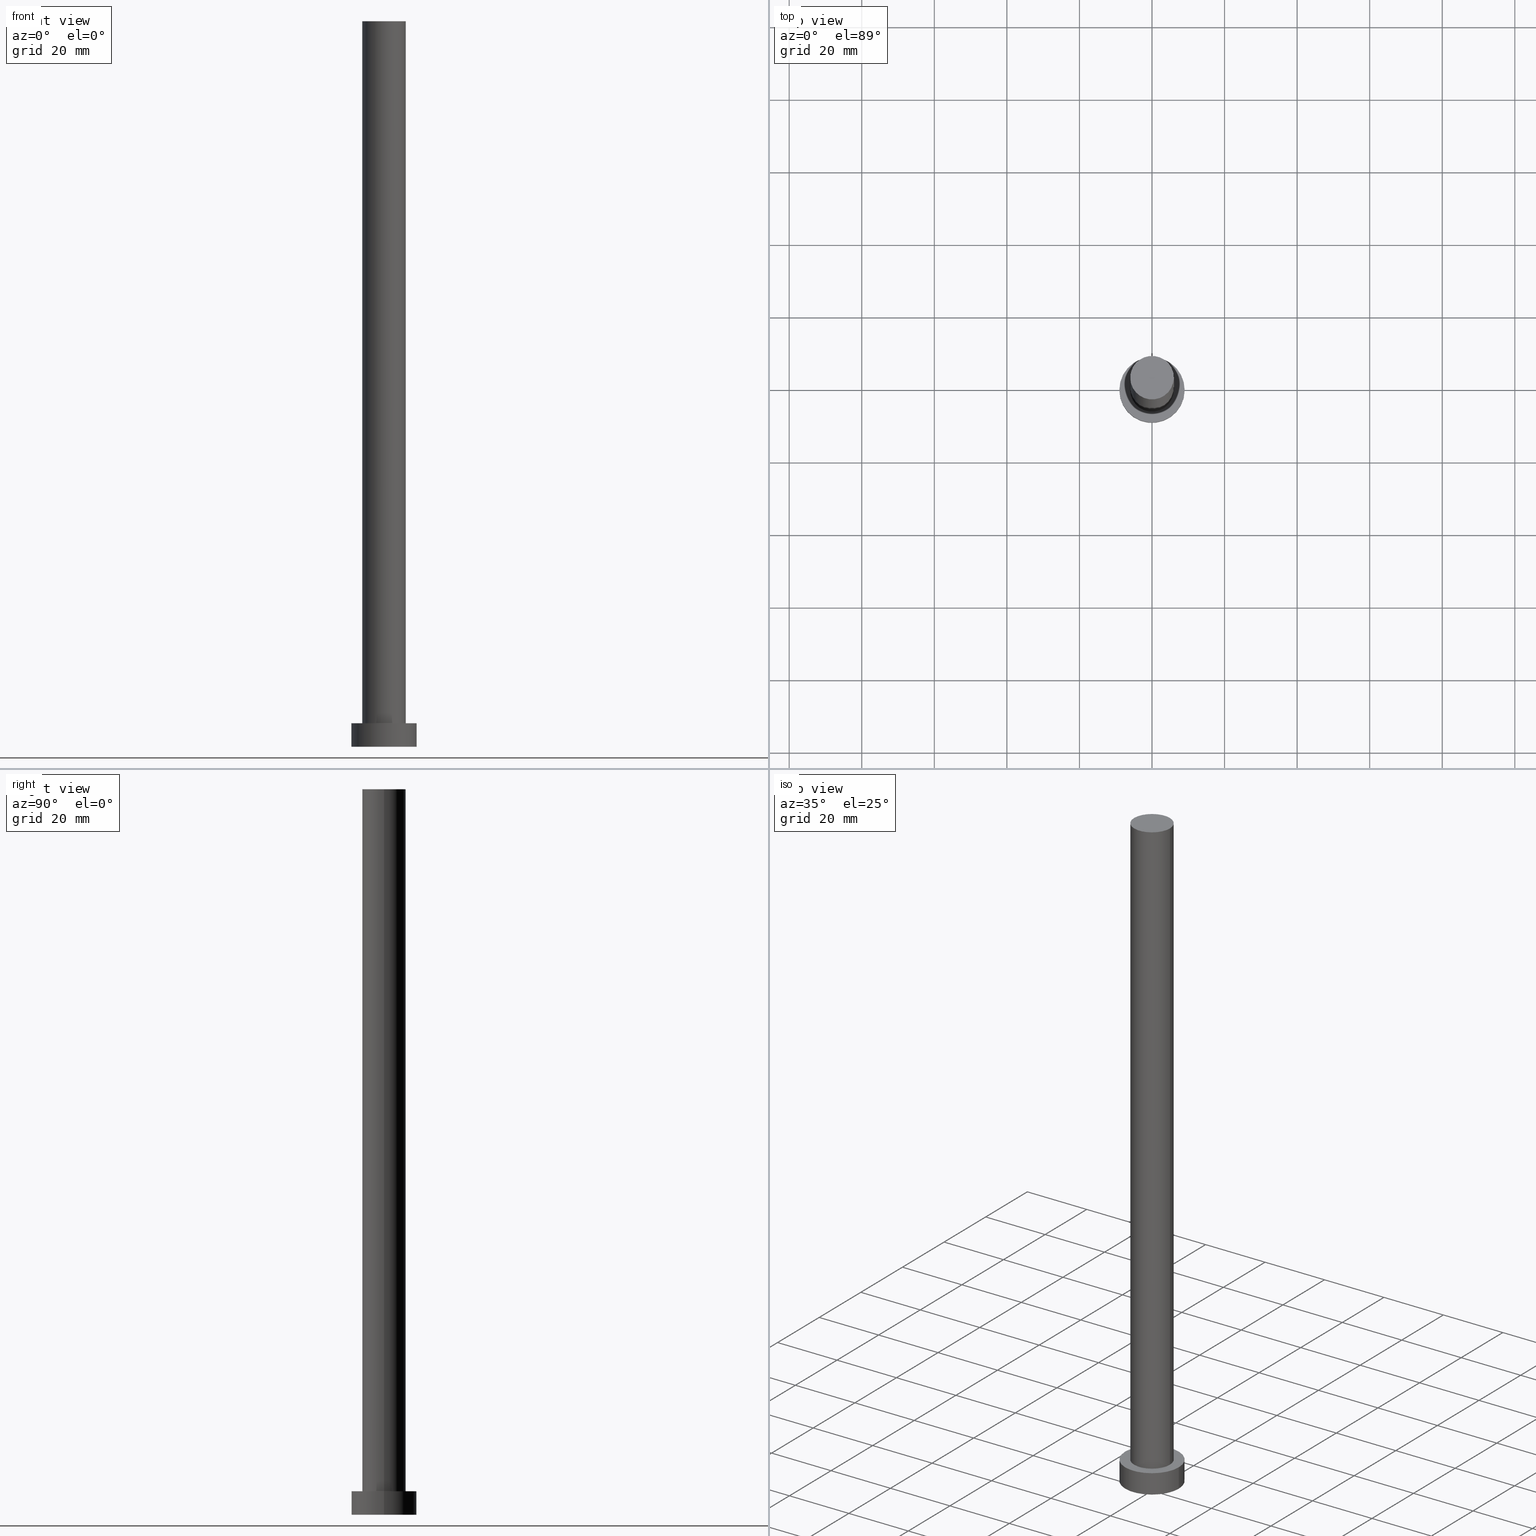
[diagram: canonical four-view strip — front | top / right | iso, engineering-drawing reading convention]
A machine part, canonical four-view strip (front | top / right | iso — engineering-drawing reading convention). The complete STEP part file that produces these views, byte-faithful:
ISO-10303-21;
HEADER;
FILE_DESCRIPTION (( 'STEP AP203' ),
    '1' );
FILE_NAME ('0cd7.STEP',
    '2023-02-13T11:32:17',
    ( '' ),
    ( '' ),
    'SwSTEP 2.0',
    'SolidWorks 2019',
    '' );
FILE_SCHEMA (( 'CONFIG_CONTROL_DESIGN' ));
ENDSEC;

DATA;
#1 = VERTEX_POINT ( 'NONE', #23 ) ;
#2 = LOCAL_TIME ( 12, 32, 17.00000000000000000, #66 ) ;
#3 = ORIENTED_EDGE ( 'NONE', *, *, #157, .F. ) ;
#4 = DIRECTION ( 'NONE',  ( 0.000000000000000000, 0.000000000000000000, 1.000000000000000000 ) ) ;
#5 = ORIENTED_EDGE ( 'NONE', *, *, #247, .F. ) ;
#6 = LOCAL_TIME ( 12, 32, 17.00000000000000000, #102 ) ;
#7 = FACE_OUTER_BOUND ( 'NONE', #186, .T. ) ;
#8 = AXIS2_PLACEMENT_3D ( 'NONE', #98, #82, #218 ) ;
#9 = ADVANCED_FACE ( 'NONE', ( #178 ), #48, .F. ) ;
#10 = UNCERTAINTY_MEASURE_WITH_UNIT (LENGTH_MEASURE( 1.000000000000000082E-05 ), #52, 'distance_accuracy_value', 'NONE');
#11 = CARTESIAN_POINT ( 'NONE',  ( 0.000000000000000000, 0.000000000000000000, 6.500000000000000000 ) ) ;
#12 = CARTESIAN_POINT ( 'NONE',  ( -9.000000000000000000, 0.000000000000000000, 6.500000000000000000 ) ) ;
#13 = PERSON_AND_ORGANIZATION_ROLE ( 'creator' ) ;
#14 = DIRECTION ( 'NONE',  ( 0.000000000000000000, 0.000000000000000000, 1.000000000000000000 ) ) ;
#15 = PERSON_AND_ORGANIZATION_ROLE ( 'creator' ) ;
#16 = VERTEX_POINT ( 'NONE', #97 ) ;
#17 = DIRECTION ( 'NONE',  ( 0.000000000000000000, 0.000000000000000000, 1.000000000000000000 ) ) ;
#18 = APPROVAL_DATE_TIME ( #205, #86 ) ;
#19 = ORIENTED_EDGE ( 'NONE', *, *, #47, .T. ) ;
#20 = DIRECTION ( 'NONE',  ( 0.000000000000000000, 0.000000000000000000, 1.000000000000000000 ) ) ;
#21 = VERTEX_POINT ( 'NONE', #130 ) ;
#22 = VERTEX_POINT ( 'NONE', #101 ) ;
#23 = CARTESIAN_POINT ( 'NONE',  ( -9.000000000000000000, 0.000000000000000000, 6.500000000000000000 ) ) ;
#24 = APPROVAL_PERSON_ORGANIZATION ( #44, #86, #228 ) ;
#25 = DIRECTION ( 'NONE',  ( -1.000000000000000000, 0.000000000000000000, 0.000000000000000000 ) ) ;
#26 = CARTESIAN_POINT ( 'NONE',  ( -6.000000000000000888, 0.000000000000000000, 200.0000000000000000 ) ) ;
#27 = CC_DESIGN_PERSON_AND_ORGANIZATION_ASSIGNMENT ( #99, #13, ( #229 ) ) ;
#28 = DIRECTION ( 'NONE',  ( 1.000000000000000000, 0.000000000000000000, 0.000000000000000000 ) ) ;
#29 = EDGE_LOOP ( 'NONE', ( #165, #103, #105, #124 ) ) ;
#30 = CIRCLE ( 'NONE', #8, 6.000000000000000888 ) ;
#31 = DIRECTION ( 'NONE',  ( -1.000000000000000000, 0.000000000000000000, 0.000000000000000000 ) ) ;
#32 = CARTESIAN_POINT ( 'NONE',  ( 0.000000000000000000, 0.000000000000000000, 0.000000000000000000 ) ) ;
#33 = CARTESIAN_POINT ( 'NONE',  ( 0.000000000000000000, 0.000000000000000000, 0.000000000000000000 ) ) ;
#34 = FACE_OUTER_BOUND ( 'NONE', #199, .T. ) ;
#35 = CIRCLE ( 'NONE', #175, 9.000000000000000000 ) ;
#36 = DATE_TIME_ROLE ( 'creation_date' ) ;
#37 = COORDINATED_UNIVERSAL_TIME_OFFSET ( 1, 0, .AHEAD. ) ;
#38 = DATE_AND_TIME ( #219, #173 ) ;
#39 = ORIENTED_EDGE ( 'NONE', *, *, #112, .F. ) ;
#40 = SECURITY_CLASSIFICATION ( '', '', #197 ) ;
#41 = DIRECTION ( 'NONE',  ( 0.000000000000000000, 0.000000000000000000, 1.000000000000000000 ) ) ;
#42 = EDGE_LOOP ( 'NONE', ( #206, #227, #50, #240 ) ) ;
#43 = CC_DESIGN_DATE_AND_TIME_ASSIGNMENT ( #38, #36, ( #229 ) ) ;
#44 = PERSON_AND_ORGANIZATION ( #211, #164 ) ;
#45 = CIRCLE ( 'NONE', #188, 6.000000000000000888 ) ;
#46 = SHAPE_DEFINITION_REPRESENTATION ( #71, #223 ) ;
#47 = EDGE_CURVE ( 'NONE', #1, #22, #170, .T. ) ;
#48 = PLANE ( 'NONE',  #91 ) ;
#49 = CALENDAR_DATE ( 2023, 13, 2 ) ;
#50 = ORIENTED_EDGE ( 'NONE', *, *, #63, .T. ) ;
#51 = PRODUCT_DEFINITION_FORMATION_WITH_SPECIFIED_SOURCE ( 'LIBOVOLN�', '', #55, .NOT_KNOWN. ) ;
#52 =( LENGTH_UNIT ( ) NAMED_UNIT ( * ) SI_UNIT ( .MILLI., .METRE. ) );
#53 = EDGE_CURVE ( 'NONE', #209, #224, #117, .T. ) ;
#54 = MECHANICAL_CONTEXT ( 'NONE', #123, 'mechanical' ) ;
#55 = PRODUCT ( '0cd7', '0cd7', '', ( #54 ) ) ;
#56 = CARTESIAN_POINT ( 'NONE',  ( -6.000000000000000888, 0.000000000000000000, 6.500000000000000000 ) ) ;
#57 = DIRECTION ( 'NONE',  ( -0.000000000000000000, -0.000000000000000000, -1.000000000000000000 ) ) ;
#58 = CIRCLE ( 'NONE', #207, 9.000000000000000000 ) ;
#59 = DIRECTION ( 'NONE',  ( -0.000000000000000000, -0.000000000000000000, -1.000000000000000000 ) ) ;
#60 = CARTESIAN_POINT ( 'NONE',  ( 9.000000000000000000, 1.102182119232617517E-15, 6.500000000000000000 ) ) ;
#61 = AXIS2_PLACEMENT_3D ( 'NONE', #161, #14, #248 ) ;
#62 = APPROVAL_STATUS ( 'not_yet_approved' ) ;
#63 = EDGE_CURVE ( 'NONE', #174, #209, #236, .T. ) ;
#64 = PERSON_AND_ORGANIZATION ( #211, #164 ) ;
#65 = DIRECTION ( 'NONE',  ( 1.000000000000000000, 0.000000000000000000, 0.000000000000000000 ) ) ;
#66 = COORDINATED_UNIVERSAL_TIME_OFFSET ( 1, 0, .AHEAD. ) ;
#67 = CARTESIAN_POINT ( 'NONE',  ( 0.000000000000000000, 0.000000000000000000, 0.000000000000000000 ) ) ;
#68 = CALENDAR_DATE ( 2023, 13, 2 ) ;
#69 = LOCAL_TIME ( 12, 32, 17.00000000000000000, #241 ) ;
#70 = DIRECTION ( 'NONE',  ( -0.000000000000000000, -0.000000000000000000, -1.000000000000000000 ) ) ;
#71 = PRODUCT_DEFINITION_SHAPE ( 'NONE', 'NONE',  #229 ) ;
#72 = CC_DESIGN_PERSON_AND_ORGANIZATION_ASSIGNMENT ( #104, #159, ( #51 ) ) ;
#73 = CC_DESIGN_SECURITY_CLASSIFICATION ( #40, ( #51 ) ) ;
#74 = FACE_OUTER_BOUND ( 'NONE', #29, .T. ) ;
#75 = CARTESIAN_POINT ( 'NONE',  ( 0.000000000000000000, 0.000000000000000000, 200.0000000000000000 ) ) ;
#76 = DIRECTION ( 'NONE',  ( 0.000000000000000000, 0.000000000000000000, 1.000000000000000000 ) ) ;
#77 = CARTESIAN_POINT ( 'NONE',  ( 0.000000000000000000, 0.000000000000000000, 200.0000000000000000 ) ) ;
#78 = AXIS2_PLACEMENT_3D ( 'NONE', #231, #132, #96 ) ;
#79 = APPROVAL_STATUS ( 'not_yet_approved' ) ;
#80 = DIRECTION ( 'NONE',  ( -0.000000000000000000, -0.000000000000000000, -1.000000000000000000 ) ) ;
#81 = CARTESIAN_POINT ( 'NONE',  ( 0.000000000000000000, 0.000000000000000000, 6.500000000000000000 ) ) ;
#82 = DIRECTION ( 'NONE',  ( 0.000000000000000000, 0.000000000000000000, 1.000000000000000000 ) ) ;
#83 = CARTESIAN_POINT ( 'NONE',  ( -6.000000000000000888, 0.000000000000000000, 200.0000000000000000 ) ) ;
#84 = CIRCLE ( 'NONE', #133, 9.000000000000000000 ) ;
#85 = CARTESIAN_POINT ( 'NONE',  ( 0.000000000000000000, 0.000000000000000000, 200.0000000000000000 ) ) ;
#86 = APPROVAL ( #172, 'NEUR�EN�' ) ;
#87 = APPROVAL_DATE_TIME ( #253, #208 ) ;
#88 = CARTESIAN_POINT ( 'NONE',  ( 0.000000000000000000, 0.000000000000000000, 6.500000000000000000 ) ) ;
#89 = APPROVAL_PERSON_ORGANIZATION ( #181, #208, #119 ) ;
#90 = DIRECTION ( 'NONE',  ( 1.000000000000000000, 0.000000000000000000, 0.000000000000000000 ) ) ;
#91 = AXIS2_PLACEMENT_3D ( 'NONE', #33, #76, #154 ) ;
#92 = ORIENTED_EDGE ( 'NONE', *, *, #166, .F. ) ;
#93 = CC_DESIGN_PERSON_AND_ORGANIZATION_ASSIGNMENT ( #116, #194, ( #55 ) ) ;
#94 = CIRCLE ( 'NONE', #192, 6.000000000000000888 ) ;
#95 = AXIS2_PLACEMENT_3D ( 'NONE', #114, #233, #131 ) ;
#96 = DIRECTION ( 'NONE',  ( -1.000000000000000000, 0.000000000000000000, 0.000000000000000000 ) ) ;
#97 = CARTESIAN_POINT ( 'NONE',  ( 6.000000000000000888, 7.347880794884120722E-16, 200.0000000000000000 ) ) ;
#98 = CARTESIAN_POINT ( 'NONE',  ( 0.000000000000000000, 0.000000000000000000, 6.500000000000000000 ) ) ;
#99 = PERSON_AND_ORGANIZATION ( #211, #164 ) ;
#100 = LINE ( 'NONE', #12, #215 ) ;
#101 = CARTESIAN_POINT ( 'NONE',  ( 9.000000000000000000, 1.102182119232617517E-15, 6.500000000000000000 ) ) ;
#102 = COORDINATED_UNIVERSAL_TIME_OFFSET ( 1, 0, .AHEAD. ) ;
#103 = ORIENTED_EDGE ( 'NONE', *, *, #47, .F. ) ;
#104 = PERSON_AND_ORGANIZATION ( #211, #164 ) ;
#105 = ORIENTED_EDGE ( 'NONE', *, *, #136, .T. ) ;
#106 = AXIS2_PLACEMENT_3D ( 'NONE', #32, #4, #176 ) ;
#107 = CARTESIAN_POINT ( 'NONE',  ( 0.000000000000000000, 0.000000000000000000, 200.0000000000000000 ) ) ;
#108 = ORIENTED_EDGE ( 'NONE', *, *, #157, .T. ) ;
#109 = EDGE_CURVE ( 'NONE', #22, #21, #120, .T. ) ;
#110 = AXIS2_PLACEMENT_3D ( 'NONE', #222, #41, #195 ) ;
#111 = DESIGN_CONTEXT ( 'detailed design', #214, 'design' ) ;
#112 = EDGE_CURVE ( 'NONE', #224, #209, #30, .T. ) ;
#113 = DIRECTION ( 'NONE',  ( 0.000000000000000000, 0.000000000000000000, 1.000000000000000000 ) ) ;
#114 = CARTESIAN_POINT ( 'NONE',  ( 0.000000000000000000, 0.000000000000000000, 6.500000000000000000 ) ) ;
#115 = PRODUCT_RELATED_PRODUCT_CATEGORY ( 'detail', '', ( #55 ) ) ;
#116 = PERSON_AND_ORGANIZATION ( #211, #164 ) ;
#117 = CIRCLE ( 'NONE', #110, 6.000000000000000888 ) ;
#118 = CC_DESIGN_PERSON_AND_ORGANIZATION_ASSIGNMENT ( #202, #15, ( #51 ) ) ;
#119 = APPROVAL_ROLE ( '' ) ;
#120 = LINE ( 'NONE', #60, #243 ) ;
#121 = ADVANCED_FACE ( 'NONE', ( #125 ), #200, .T. ) ;
#122 = CC_DESIGN_APPROVAL ( #208, ( #51 ) ) ;
#123 = APPLICATION_CONTEXT ( 'configuration controlled 3d designs of mechanical parts and assemblies' ) ;
#124 = ORIENTED_EDGE ( 'NONE', *, *, #162, .T. ) ;
#125 = FACE_OUTER_BOUND ( 'NONE', #145, .T. ) ;
#126 = DIRECTION ( 'NONE',  ( 0.000000000000000000, 0.000000000000000000, 1.000000000000000000 ) ) ;
#127 = LOCAL_TIME ( 12, 32, 17.00000000000000000, #238 ) ;
#128 = ORIENTED_EDGE ( 'NONE', *, *, #247, .T. ) ;
#129 = CARTESIAN_POINT ( 'NONE',  ( -9.000000000000000000, 0.000000000000000000, 0.000000000000000000 ) ) ;
#130 = CARTESIAN_POINT ( 'NONE',  ( 9.000000000000000000, 1.102182119232617517E-15, 0.000000000000000000 ) ) ;
#131 = DIRECTION ( 'NONE',  ( -1.000000000000000000, 0.000000000000000000, 0.000000000000000000 ) ) ;
#132 = DIRECTION ( 'NONE',  ( -0.000000000000000000, -0.000000000000000000, -1.000000000000000000 ) ) ;
#133 = AXIS2_PLACEMENT_3D ( 'NONE', #81, #177, #28 ) ;
#134 = CYLINDRICAL_SURFACE ( 'NONE', #217, 6.000000000000000888 ) ;
#135 = FACE_BOUND ( 'NONE', #163, .T. ) ;
#136 = EDGE_CURVE ( 'NONE', #1, #254, #100, .T. ) ;
#137 = APPROVAL_DATE_TIME ( #160, #201 ) ;
#138 = EDGE_LOOP ( 'NONE', ( #203, #3 ) ) ;
#139 = ORIENTED_EDGE ( 'NONE', *, *, #166, .T. ) ;
#140 = DIRECTION ( 'NONE',  ( 0.000000000000000000, 0.000000000000000000, 1.000000000000000000 ) ) ;
#141 = DATE_TIME_ROLE ( 'classification_date' ) ;
#142 = ORIENTED_EDGE ( 'NONE', *, *, #109, .T. ) ;
#143 = EDGE_CURVE ( 'NONE', #16, #224, #216, .T. ) ;
#144 = ADVANCED_FACE ( 'NONE', ( #135, #34 ), #204, .T. ) ;
#145 = EDGE_LOOP ( 'NONE', ( #167, #139 ) ) ;
#146 = DATE_AND_TIME ( #49, #69 ) ;
#147 = VECTOR ( 'NONE', #57, 1000.000000000000000 ) ;
#148 =( GEOMETRIC_REPRESENTATION_CONTEXT ( 3 ) GLOBAL_UNCERTAINTY_ASSIGNED_CONTEXT ( ( #10 ) ) GLOBAL_UNIT_ASSIGNED_CONTEXT ( ( #52, #213, #153 ) ) REPRESENTATION_CONTEXT ( 'NONE', 'WORKASPACE' ) );
#149 = DIRECTION ( 'NONE',  ( -0.000000000000000000, -0.000000000000000000, -1.000000000000000000 ) ) ;
#150 = APPLICATION_PROTOCOL_DEFINITION ( 'international standard', 'config_control_design', 1994, #123 ) ;
#151 = ORIENTED_EDGE ( 'NONE', *, *, #63, .F. ) ;
#152 = DIRECTION ( 'NONE',  ( 1.000000000000000000, 0.000000000000000000, 0.000000000000000000 ) ) ;
#153 =( NAMED_UNIT ( * ) SI_UNIT ( $, .STERADIAN. ) SOLID_ANGLE_UNIT ( ) );
#154 = DIRECTION ( 'NONE',  ( 1.000000000000000000, 0.000000000000000000, -0.000000000000000000 ) ) ;
#155 = FACE_OUTER_BOUND ( 'NONE', #42, .T. ) ;
#156 = APPROVAL_ROLE ( '' ) ;
#157 = EDGE_CURVE ( 'NONE', #21, #254, #35, .T. ) ;
#158 = CARTESIAN_POINT ( 'NONE',  ( 6.000000000000000888, 7.347880794884120722E-16, 200.0000000000000000 ) ) ;
#159 = PERSON_AND_ORGANIZATION_ROLE ( 'design_supplier' ) ;
#160 = DATE_AND_TIME ( #198, #127 ) ;
#161 = CARTESIAN_POINT ( 'NONE',  ( 0.000000000000000000, 0.000000000000000000, 200.0000000000000000 ) ) ;
#162 = EDGE_CURVE ( 'NONE', #254, #21, #58, .T. ) ;
#163 = EDGE_LOOP ( 'NONE', ( #226, #39 ) ) ;
#164 = ORGANIZATION ( 'NEUR�EN�', 'NEUR�EN�', '' ) ;
#165 = ORIENTED_EDGE ( 'NONE', *, *, #109, .F. ) ;
#166 = EDGE_CURVE ( 'NONE', #16, #174, #94, .T. ) ;
#167 = ORIENTED_EDGE ( 'NONE', *, *, #190, .T. ) ;
#168 = DIRECTION ( 'NONE',  ( 1.000000000000000000, 0.000000000000000000, -0.000000000000000000 ) ) ;
#169 = PERSON_AND_ORGANIZATION_ROLE ( 'classification_officer' ) ;
#170 = CIRCLE ( 'NONE', #210, 9.000000000000000000 ) ;
#171 = CC_DESIGN_DATE_AND_TIME_ASSIGNMENT ( #146, #141, ( #40 ) ) ;
#172 = APPROVAL_STATUS ( 'not_yet_approved' ) ;
#173 = LOCAL_TIME ( 12, 32, 17.00000000000000000, #37 ) ;
#174 = VERTEX_POINT ( 'NONE', #26 ) ;
#175 = AXIS2_PLACEMENT_3D ( 'NONE', #189, #126, #225 ) ;
#176 = DIRECTION ( 'NONE',  ( 1.000000000000000000, 0.000000000000000000, 0.000000000000000000 ) ) ;
#177 = DIRECTION ( 'NONE',  ( 0.000000000000000000, 0.000000000000000000, 1.000000000000000000 ) ) ;
#178 = FACE_OUTER_BOUND ( 'NONE', #138, .T. ) ;
#179 = VECTOR ( 'NONE', #80, 1000.000000000000000 ) ;
#180 = APPLICATION_PROTOCOL_DEFINITION ( 'international standard', 'config_control_design', 1994, #214 ) ;
#181 = PERSON_AND_ORGANIZATION ( #211, #164 ) ;
#182 = MANIFOLD_SOLID_BREP ( 'P�idat vysunut�m3', #249 ) ;
#183 = CALENDAR_DATE ( 2023, 13, 2 ) ;
#184 = AXIS2_PLACEMENT_3D ( 'NONE', #88, #140, #168 ) ;
#185 = DIRECTION ( 'NONE',  ( 0.000000000000000000, 0.000000000000000000, 1.000000000000000000 ) ) ;
#186 = EDGE_LOOP ( 'NONE', ( #5, #142, #108, #220 ) ) ;
#187 = ADVANCED_FACE ( 'NONE', ( #242 ), #234, .T. ) ;
#188 = AXIS2_PLACEMENT_3D ( 'NONE', #77, #113, #152 ) ;
#189 = CARTESIAN_POINT ( 'NONE',  ( 0.000000000000000000, 0.000000000000000000, 0.000000000000000000 ) ) ;
#190 = EDGE_CURVE ( 'NONE', #174, #16, #45, .T. ) ;
#191 = CYLINDRICAL_SURFACE ( 'NONE', #95, 9.000000000000000000 ) ;
#192 = AXIS2_PLACEMENT_3D ( 'NONE', #107, #17, #65 ) ;
#193 = CARTESIAN_POINT ( 'NONE',  ( 6.000000000000000888, 7.347880794884120722E-16, 6.500000000000000000 ) ) ;
#194 = PERSON_AND_ORGANIZATION_ROLE ( 'design_owner' ) ;
#195 = DIRECTION ( 'NONE',  ( 1.000000000000000000, 0.000000000000000000, 0.000000000000000000 ) ) ;
#196 = AXIS2_PLACEMENT_3D ( 'NONE', #75, #70, #31 ) ;
#197 = SECURITY_CLASSIFICATION_LEVEL ( 'unclassified' ) ;
#198 = CALENDAR_DATE ( 2023, 13, 2 ) ;
#199 = EDGE_LOOP ( 'NONE', ( #19, #128 ) ) ;
#200 = PLANE ( 'NONE',  #61 ) ;
#201 = APPROVAL ( #79, 'NEUR�EN�' ) ;
#202 = PERSON_AND_ORGANIZATION ( #211, #164 ) ;
#203 = ORIENTED_EDGE ( 'NONE', *, *, #162, .F. ) ;
#204 = PLANE ( 'NONE',  #184 ) ;
#205 = DATE_AND_TIME ( #68, #2 ) ;
#206 = ORIENTED_EDGE ( 'NONE', *, *, #143, .F. ) ;
#207 = AXIS2_PLACEMENT_3D ( 'NONE', #67, #20, #90 ) ;
#208 = APPROVAL ( #62, 'NEUR�EN�' ) ;
#209 = VERTEX_POINT ( 'NONE', #56 ) ;
#210 = AXIS2_PLACEMENT_3D ( 'NONE', #11, #185, #250 ) ;
#211 = PERSON ( 'NEUR�EN�', 'NEUR�EN�', 'NEUR�EN�', ('NEUR�EN�'), ('NEUR�EN�'), ('NEUR�EN�') ) ;
#212 = ADVANCED_FACE ( 'NONE', ( #74 ), #191, .T. ) ;
#213 =( NAMED_UNIT ( * ) PLANE_ANGLE_UNIT ( ) SI_UNIT ( $, .RADIAN. ) );
#214 = APPLICATION_CONTEXT ( 'configuration controlled 3d designs of mechanical parts and assemblies' ) ;
#215 = VECTOR ( 'NONE', #59, 1000.000000000000000 ) ;
#216 = LINE ( 'NONE', #158, #147 ) ;
#217 = AXIS2_PLACEMENT_3D ( 'NONE', #85, #149, #25 ) ;
#218 = DIRECTION ( 'NONE',  ( 1.000000000000000000, 0.000000000000000000, 0.000000000000000000 ) ) ;
#219 = CALENDAR_DATE ( 2023, 13, 2 ) ;
#220 = ORIENTED_EDGE ( 'NONE', *, *, #136, .F. ) ;
#221 = ADVANCED_FACE ( 'NONE', ( #155 ), #134, .T. ) ;
#222 = CARTESIAN_POINT ( 'NONE',  ( 0.000000000000000000, 0.000000000000000000, 6.500000000000000000 ) ) ;
#223 = ADVANCED_BREP_SHAPE_REPRESENTATION ( '0cd7', ( #182, #106 ), #148 ) ;
#224 = VERTEX_POINT ( 'NONE', #193 ) ;
#225 = DIRECTION ( 'NONE',  ( 1.000000000000000000, 0.000000000000000000, 0.000000000000000000 ) ) ;
#226 = ORIENTED_EDGE ( 'NONE', *, *, #53, .F. ) ;
#227 = ORIENTED_EDGE ( 'NONE', *, *, #190, .F. ) ;
#228 = APPROVAL_ROLE ( '' ) ;
#229 = PRODUCT_DEFINITION ( 'NEZN�M�', '', #51, #111 ) ;
#230 = CC_DESIGN_APPROVAL ( #86, ( #40 ) ) ;
#231 = CARTESIAN_POINT ( 'NONE',  ( 0.000000000000000000, 0.000000000000000000, 6.500000000000000000 ) ) ;
#232 = EDGE_LOOP ( 'NONE', ( #92, #239, #255, #151 ) ) ;
#233 = DIRECTION ( 'NONE',  ( -0.000000000000000000, -0.000000000000000000, -1.000000000000000000 ) ) ;
#234 = CYLINDRICAL_SURFACE ( 'NONE', #196, 6.000000000000000888 ) ;
#235 = CC_DESIGN_APPROVAL ( #201, ( #229 ) ) ;
#236 = LINE ( 'NONE', #83, #179 ) ;
#237 = CC_DESIGN_PERSON_AND_ORGANIZATION_ASSIGNMENT ( #64, #169, ( #40 ) ) ;
#238 = COORDINATED_UNIVERSAL_TIME_OFFSET ( 1, 0, .AHEAD. ) ;
#239 = ORIENTED_EDGE ( 'NONE', *, *, #143, .T. ) ;
#240 = ORIENTED_EDGE ( 'NONE', *, *, #53, .T. ) ;
#241 = COORDINATED_UNIVERSAL_TIME_OFFSET ( 1, 0, .AHEAD. ) ;
#242 = FACE_OUTER_BOUND ( 'NONE', #232, .T. ) ;
#243 = VECTOR ( 'NONE', #252, 1000.000000000000000 ) ;
#244 = APPROVAL_PERSON_ORGANIZATION ( #246, #201, #156 ) ;
#245 = CYLINDRICAL_SURFACE ( 'NONE', #78, 9.000000000000000000 ) ;
#246 = PERSON_AND_ORGANIZATION ( #211, #164 ) ;
#247 = EDGE_CURVE ( 'NONE', #22, #1, #84, .T. ) ;
#248 = DIRECTION ( 'NONE',  ( 1.000000000000000000, 0.000000000000000000, -0.000000000000000000 ) ) ;
#249 = CLOSED_SHELL ( 'NONE', ( #187, #251, #212, #144, #9, #221, #121 ) ) ;
#250 = DIRECTION ( 'NONE',  ( 1.000000000000000000, 0.000000000000000000, 0.000000000000000000 ) ) ;
#251 = ADVANCED_FACE ( 'NONE', ( #7 ), #245, .T. ) ;
#252 = DIRECTION ( 'NONE',  ( -0.000000000000000000, -0.000000000000000000, -1.000000000000000000 ) ) ;
#253 = DATE_AND_TIME ( #183, #6 ) ;
#254 = VERTEX_POINT ( 'NONE', #129 ) ;
#255 = ORIENTED_EDGE ( 'NONE', *, *, #112, .T. ) ;
ENDSEC;
END-ISO-10303-21;
